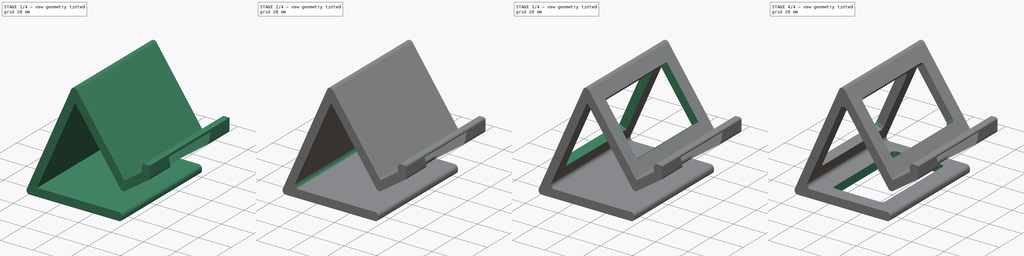
[diagram: build sequence overview — one tinted view per stage of 4, left to right]
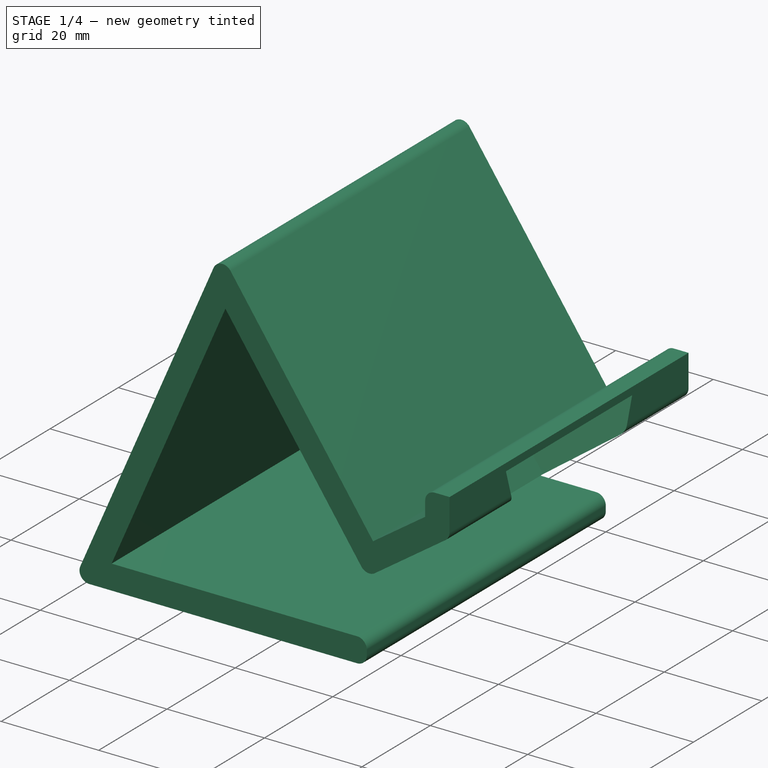
[diagram: stage 1 of 4 — iso view after this stage's code; geometry added in this stage tinted green]
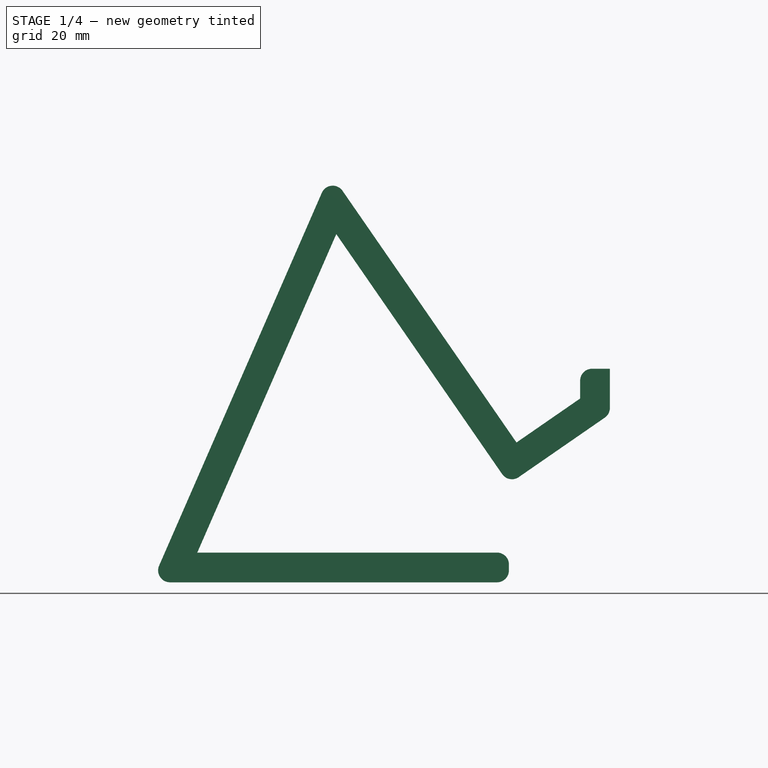
[diagram: stage 1 of 4 — front view after this stage's code; geometry added in this stage tinted green]
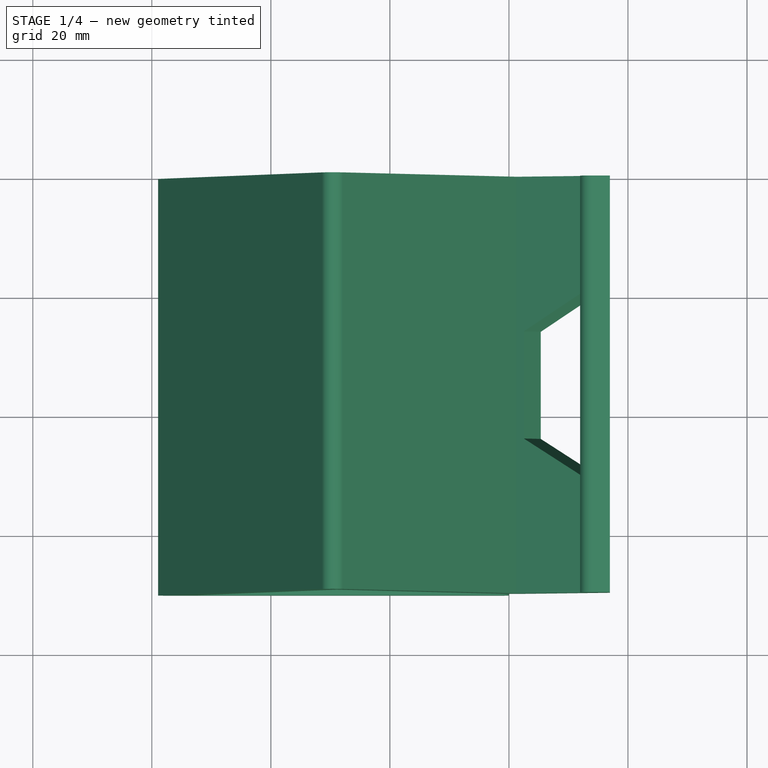
[diagram: stage 1 of 4 — top view after this stage's code; geometry added in this stage tinted green]
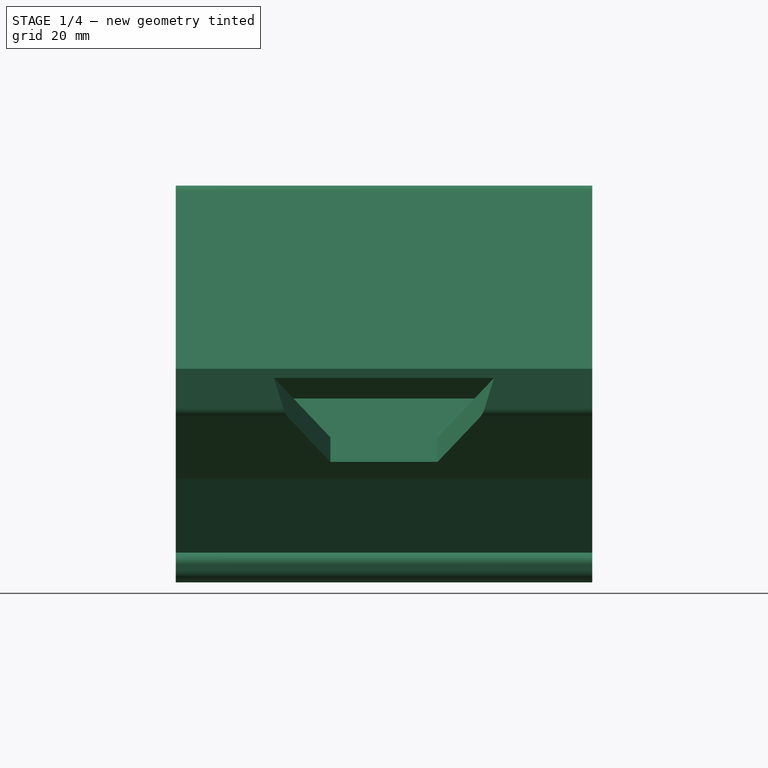
[diagram: stage 1 of 4 — right view after this stage's code; geometry added in this stage tinted green]
FCSTD DOCUMENT  (FreeCAD 0.21R33694 (Git))
Label: PhoneStand
License: All rights reserved
LicenseURL: http://en.wikipedia.org/wiki/All_rights_reserved
objects: PartDesign::Fillet×6, Sketcher::SketchObject×5, PartDesign::Pocket×4, PartDesign::Pad×1, PartDesign::Body×1
note: 28 computed .brp shape members not serialized (recipe doc carries the construction recipe); baked Part::Feature solids carry a one-line shape summary decoded from their .brp

FEATURE [Sketcher::SketchObject] Sketch
  FullyConstrained = true
  MapMode = 5
  Placement = pos=(0,0,0) rot=(1,0,0;1.5708rad)
  Support = -> [XZ_Plane]
  sketch-geometry (15):
    g0: LineSegment StartX=0 StartY=0 StartZ=0 EndX=30 EndY=68.7386 EndZ=0
    g1: LineSegment StartX=30 StartY=68.7386 StartZ=0 EndX=61.2705 EndY=23.4931 EndZ=0
    g2: LineSegment StartX=61.2705 StartY=23.4931 StartZ=0 EndX=71.9649 EndY=30.8843 EndZ=0
    g3: LineSegment StartX=71.9649 StartY=30.8843 StartZ=0 EndX=71.9649 EndY=35.8843 EndZ=0
    g4: LineSegment StartX=71.9649 StartY=35.8843 StartZ=0 EndX=76.9649 EndY=35.8843 EndZ=0
    g5: LineSegment StartX=76.9649 StartY=35.8843 StartZ=0 EndX=76.9649 EndY=28.262 EndZ=0
    g6: LineSegment StartX=76.9649 StartY=28.262 StartZ=0 EndX=60 EndY=16.5371 EndZ=0
    g7: LineSegment StartX=60 StartY=16.5371 StartZ=0 EndX=30.9913 EndY=58.51 EndZ=0
    g8: LineSegment StartX=30.9913 StartY=58.51 StartZ=0 EndX=7.63763 EndY=5 EndZ=0
    g9: LineSegment StartX=60 StartY=5 StartZ=0 EndX=60 EndY=0 EndZ=0
    g10: LineSegment StartX=60 StartY=0 StartZ=0 EndX=0 EndY=0 EndZ=0
    g11: LineSegment StartX=7.63763 StartY=5 StartZ=0 EndX=60 EndY=5 EndZ=0
    g12: LineSegment StartX=19.3145 StartY=31.755 StartZ=0 EndX=14.7319 EndY=33.755 EndZ=0
    g13: LineSegment StartX=45.4957 StartY=37.5236 StartZ=0 EndX=49.6089 EndY=40.3663 EndZ=0
    g14: LineSegment StartX=65.6397 StartY=26.5128 StartZ=0 EndX=68.4824 EndY=22.3995 EndZ=0
  constraints (44):
    c: Coincident(g-1,g0)
    c: Coincident(g0,g1)
    c: Coincident(g1,g2)
    c: Coincident(g2,g3)
    c: Coincident(g3,g4)
    c: Coincident(g4,g5)
    c: Vertical(g5)
    c: Coincident(g5,g6)
    c: Coincident(g6,g7)
    c: Coincident(g7,g8)
    c: PointOnObject(g9,g-1)
    c: Coincident(g9,g10)
    c: Coincident(g10,g0)
    c: Parallel(g8,g0)
    c: Parallel(g7,g1)
    c: Parallel(g2,g6)
    c: Parallel(g3,g5)
    c: Coincident(g11,g8)
    c: Coincident(g11,g9)
    c: Horizontal(g11)
    c: DistanceX(g10,g10) = 60
    c: Vertical(g9)
    c: Distance(g0) = 75
    c: DistanceX(g0,g0) = 30
    c: DistanceY(g9,g9) = 5
    c: Distance(g1) = 55
    c: DistanceX(g0,g6) = 60
    c: Angle(g2,g1) = 1.5708
    c: Distance(g2) = 13
    c: Horizontal(g4)
    c: DistanceY(g3,g3) = 5
    c: DistanceX(g4,g4) = 5
    c: PointOnObject(g12,g0)
    c: Perpendicular(g12,g8)
    c: Distance(g12) = 5
    c: PointOnObject(g13,g1)
    c: Perpendicular(g13,g7)
    c: Distance(g13) = 5
    c: PointOnObject(g14,g2)
    c: Perpendicular(g14,g2)
    c: Distance(g14) = 5
    c: Symmetric(g8,g7,g12)
    c: Symmetric(g7,g6,g13)
    c: Symmetric(g6,g5,g14)
FEATURE [PartDesign::Pad] Pad
  Direction = (0,-1,2e-16)
  Length = 70
  Length2 = 10
  Placement = pos=(0,0,0) rot=(1,0,0;1.5708rad)
  Profile = -> Sketch
  ReferenceAxis = -> Sketch [N_Axis]
  Type = 0
FEATURE [Sketcher::SketchObject] Sketch001
  ExternalGeometry = -> [Pad]
  FullyConstrained = true
  MapMode = 5
  Placement = pos=(8.81773,-2.8e-15,-12.7585) rot=(-0.297787,0,0.954632;3.14159rad)
  Support = -> [Pad]
  sketch-geometry (6):
    g0: LineSegment StartX=-90.261 StartY=57.5 StartZ=0 EndX=-65.261 EndY=44 EndZ=0
    g1: LineSegment StartX=-65.261 StartY=44 StartZ=0 EndX=-65.261 EndY=26 EndZ=0
    g2: LineSegment StartX=-65.261 StartY=26 StartZ=0 EndX=-90.261 EndY=12.5 EndZ=0
    g3: LineSegment StartX=-90.261 StartY=12.5 StartZ=0 EndX=-90.261 EndY=57.5 EndZ=0
    g4: GeomPoint X=-65.261 Y=35 Z=0
    g5: LineSegment StartX=-65.261 StartY=70 StartZ=0 EndX=-65.261 EndY=0 EndZ=0
  constraints (16):
    c: Coincident(g0,g1)
    c: Vertical(g1)
    c: Coincident(g1,g2)
    c: Coincident(g2,g3)
    c: Coincident(g3,g0)
    c: Vertical(g3)
    c: DistanceX(g0,g-3) = 1.5
    c: Equal(g0,g2)
    c: Distance(g1) = 18
    c: Symmetric(g0,g1,g4)
    c: Vertical(g5)
    c: Horizontal(g5,g-3)
    c: Horizontal(g-3,g5)
    c: Symmetric(g5,g5,g4)
    c: DistanceY(g3,g3) = 45
    c: DistanceX(g0,g0) = 25
FEATURE [PartDesign::Pocket] Pocket
  BaseFeature = -> Pad
  Direction = (0.568554,-2e-16,-0.822646)
  Length = 5
  Length2 = 5
  Placement = pos=(0,0,0) rot=(1,0,0;1.5708rad)
  Profile = -> Sketch001
  ReferenceAxis = -> Sketch001 [N_Axis]
  Type = 1
FEATURE [PartDesign::Fillet] Fillet
  Base = -> Pocket [Edge29,Edge5,Edge2,Edge1,Edge43,Edge36,Edge42,Edge38]
  BaseFeature = -> Pocket
  Placement = pos=(0,0,0) rot=(1,0,0;1.5708rad)
  Radius = 2
  SupportTransform = false
  UseAllEdges = false
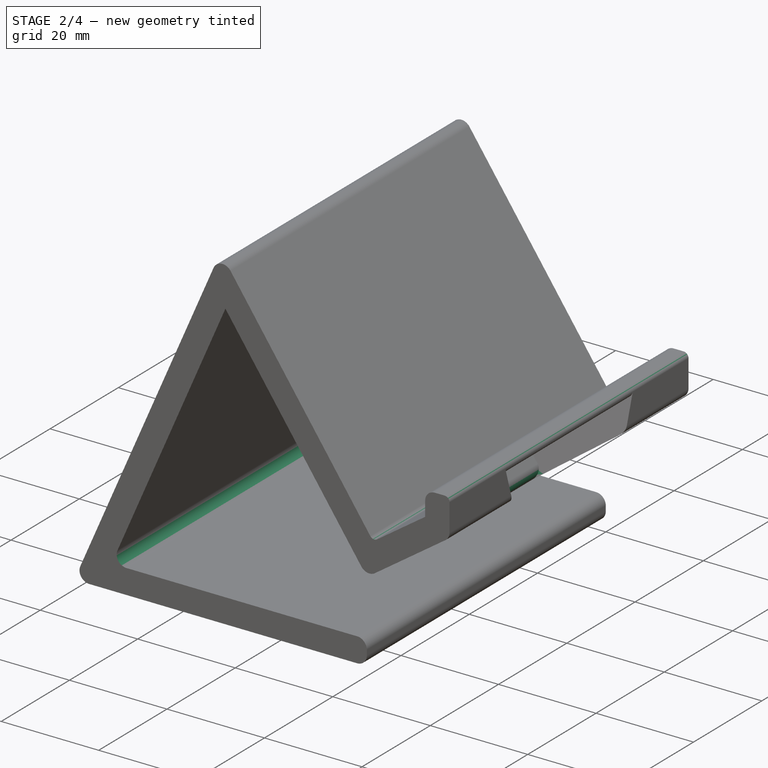
[diagram: stage 2 of 4 — iso view after this stage's code; geometry added in this stage tinted green]
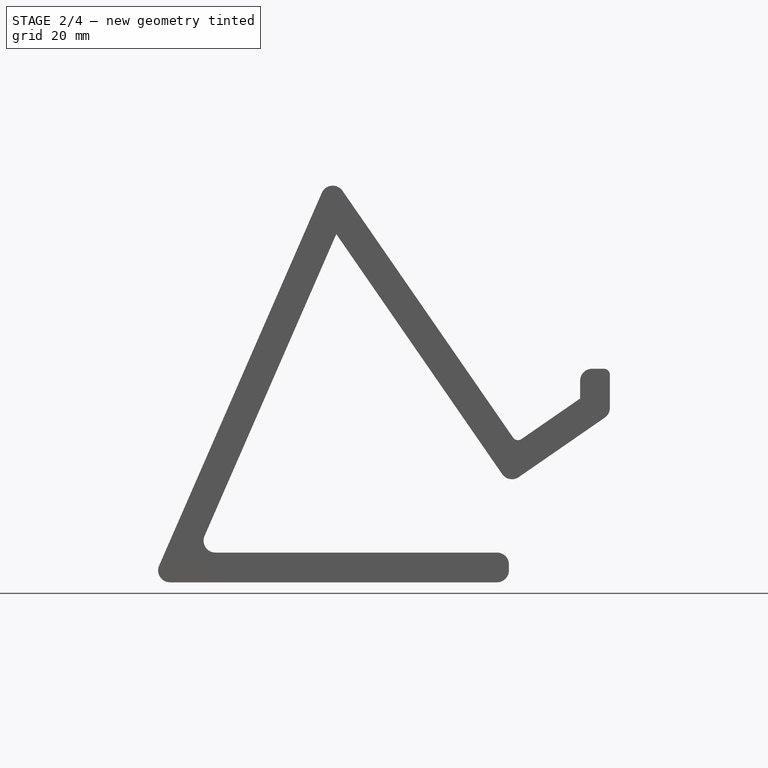
[diagram: stage 2 of 4 — front view after this stage's code; geometry added in this stage tinted green]
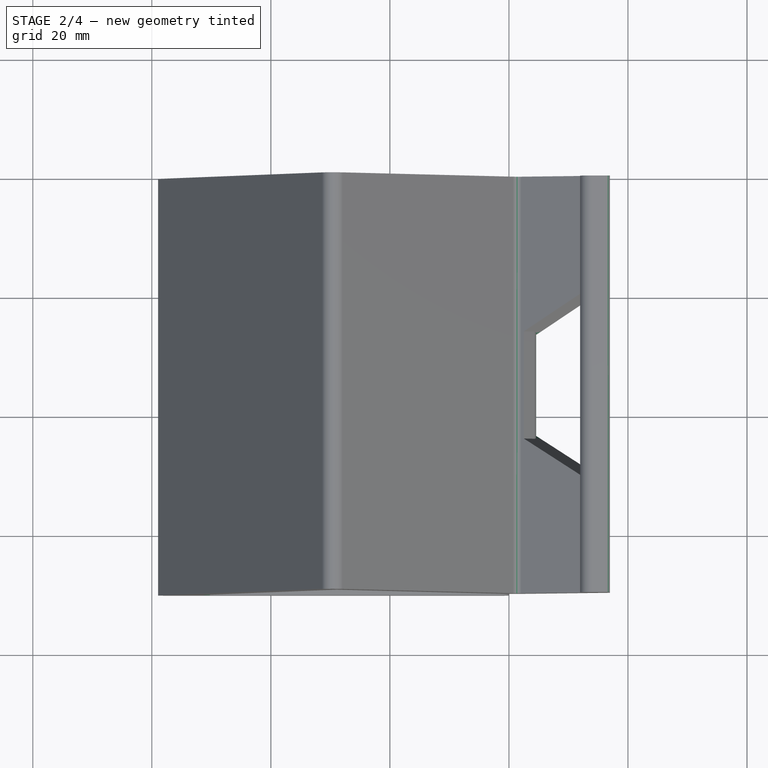
[diagram: stage 2 of 4 — top view after this stage's code; geometry added in this stage tinted green]
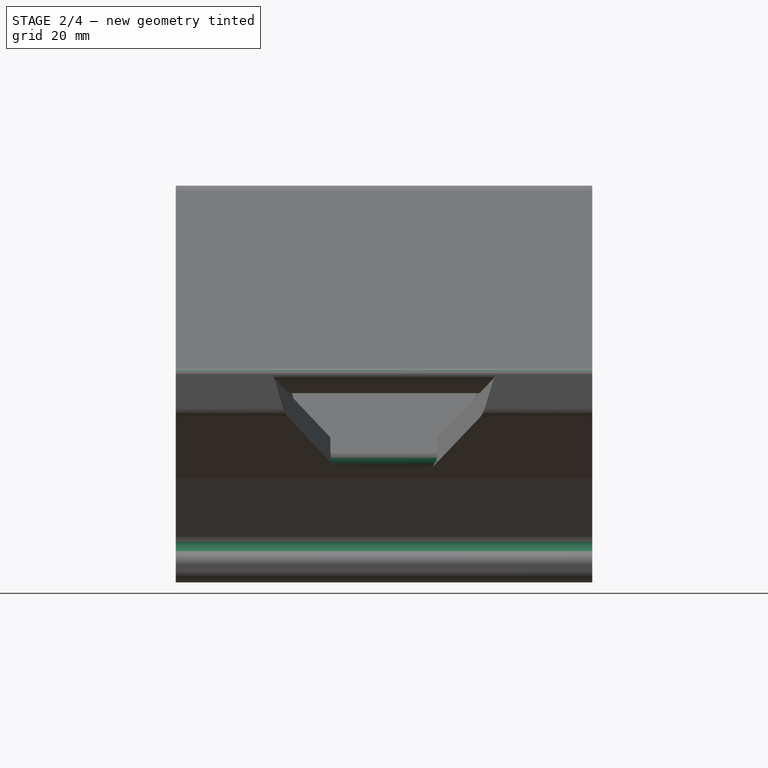
[diagram: stage 2 of 4 — right view after this stage's code; geometry added in this stage tinted green]
FEATURE [PartDesign::Fillet] Fillet001
  Base = -> Fillet [Edge44,Edge57,Edge61,Edge53]
  BaseFeature = -> Fillet
  Placement = pos=(0,0,0) rot=(1,0,0;1.5708rad)
  Radius = 1
  SupportTransform = false
  UseAllEdges = false
FEATURE [PartDesign::Fillet] Fillet002
  Base = -> Fillet001 [Edge68]
  BaseFeature = -> Fillet001
  Placement = pos=(0,0,0) rot=(1,0,0;1.5708rad)
  Radius = 2
  SupportTransform = false
  UseAllEdges = false
FEATURE [PartDesign::Fillet] Fillet003
  Base = -> Fillet002 [Edge45]
  BaseFeature = -> Fillet002
  Placement = pos=(0,0,0) rot=(1,0,0;1.5708rad)
  Radius = 2
  SupportTransform = false
  UseAllEdges = false
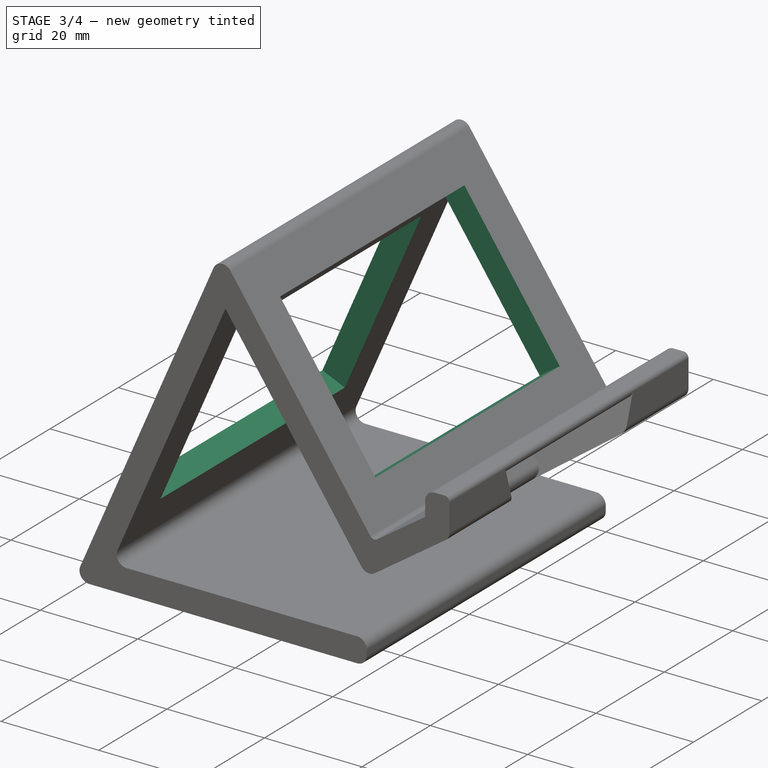
[diagram: stage 3 of 4 — iso view after this stage's code; geometry added in this stage tinted green]
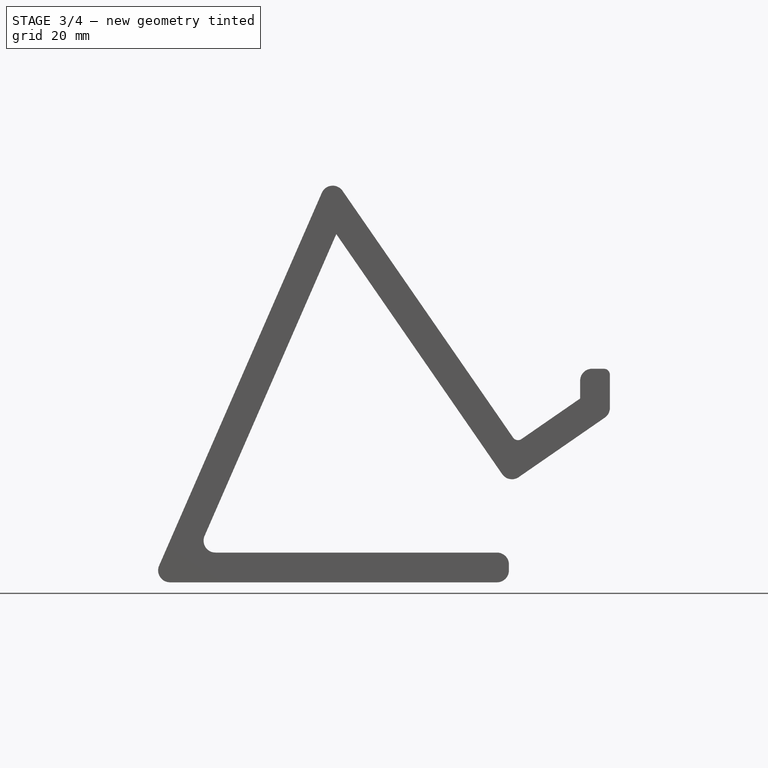
[diagram: stage 3 of 4 — front view after this stage's code; geometry added in this stage tinted green]
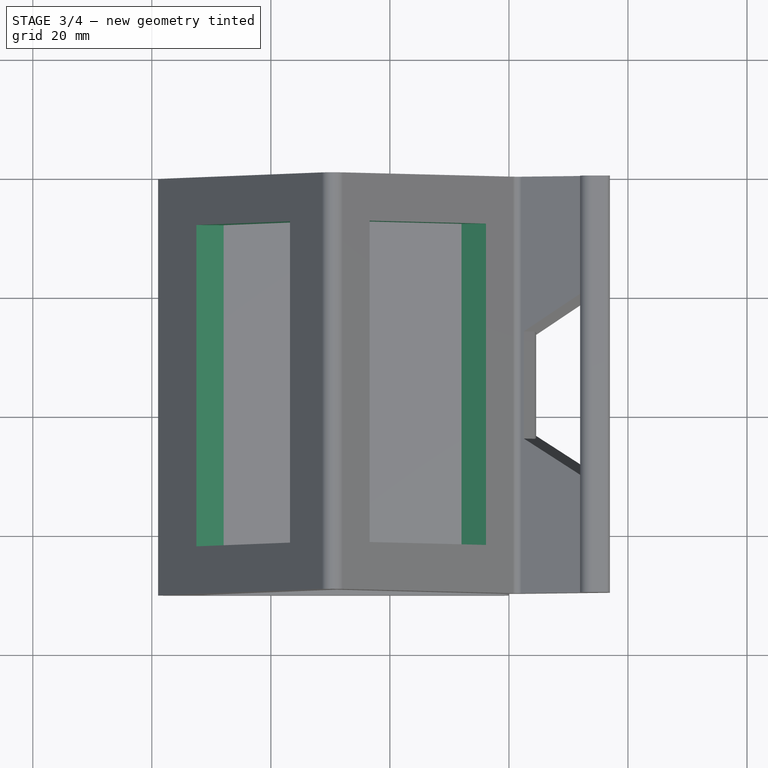
[diagram: stage 3 of 4 — top view after this stage's code; geometry added in this stage tinted green]
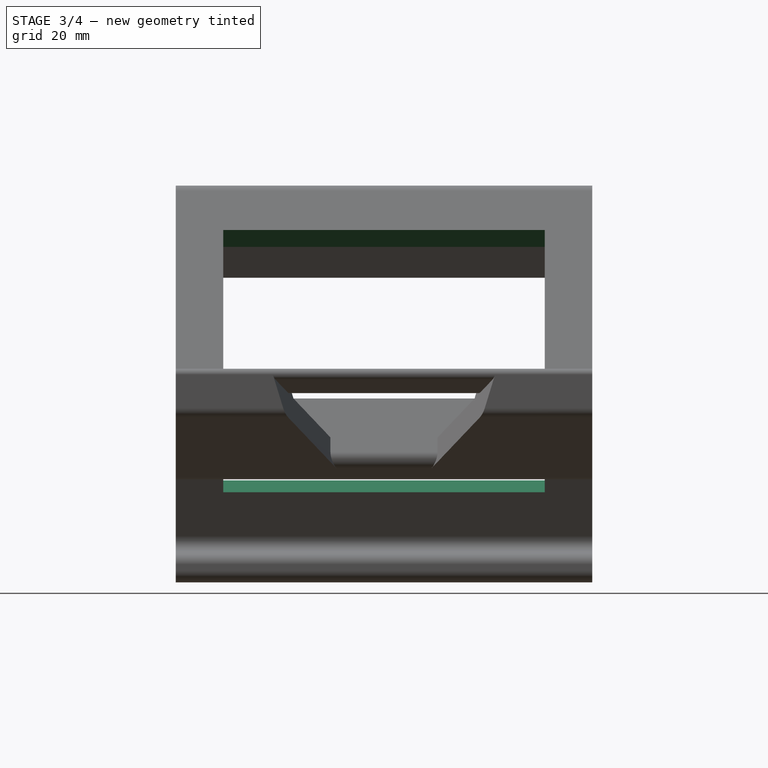
[diagram: stage 3 of 4 — right view after this stage's code; geometry added in this stage tinted green]
FEATURE [Sketcher::SketchObject] Sketch002
  ExternalGeometry = -> [Fillet003]
  FullyConstrained = true
  MapMode = 5
  Placement = pos=(52.4527,8e-15,36.2516) rot=(0.46446,0,0.885594;3.14159rad)
  Support = -> [Fillet003]
  sketch-geometry (6):
    g0: GeomPoint X=10.6953 Y=35 Z=0
    g1: LineSegment StartX=-6.50905 StartY=62 StartZ=0 EndX=-6.50905 EndY=8 EndZ=0
    g2: LineSegment StartX=-6.50905 StartY=8 StartZ=0 EndX=27.8997 EndY=8 EndZ=0
    g3: LineSegment StartX=27.8997 StartY=8 StartZ=0 EndX=27.8997 EndY=62 EndZ=0
    g4: LineSegment StartX=27.8997 StartY=62 StartZ=0 EndX=-6.50905 EndY=62 EndZ=0
    g5: GeomPoint X=10.6953 Y=35 Z=0
  constraints (13):
    c: Symmetric(g-3,g-4,g0)
    c: Coincident(g1,g2)
    c: Coincident(g2,g3)
    c: Coincident(g3,g4)
    c: Coincident(g4,g1)
    c: Horizontal(g2)
    c: Horizontal(g4)
    c: Vertical(g1)
    c: Vertical(g3)
    c: Symmetric(g2,g1,g5)
    c: Coincident(g5,g0)
    c: DistanceY(g1,g-4) = 8
    c: DistanceX(g-3,g1) = 8
FEATURE [PartDesign::Pocket] Pocket001
  BaseFeature = -> Fillet003
  Direction = (-0.822646,-1e-16,-0.568554)
  Length = 5
  Length2 = 5
  Placement = pos=(0,0,0) rot=(1,0,0;1.5708rad)
  Profile = -> Sketch002
  ReferenceAxis = -> Sketch002 [N_Axis]
  Type = 2
FEATURE [Sketcher::SketchObject] Sketch003
  ExternalGeometry = -> [Pocket001]
  FullyConstrained = true
  MapMode = 5
  Placement = pos=(4.58258,-4e-16,-2) rot=(0.83666,0,0.547723;3.14159rad)
  Support = -> [Pocket001]
  sketch-geometry (6):
    g0: GeomPoint X=38.3573 Y=35 Z=0
    g1: LineSegment StartX=18.6927 StartY=62 StartZ=0 EndX=18.6927 EndY=8 EndZ=0
    g2: LineSegment StartX=18.6927 StartY=8 StartZ=0 EndX=58.0219 EndY=8 EndZ=0
    g3: LineSegment StartX=58.0219 StartY=8 StartZ=0 EndX=58.0219 EndY=62 EndZ=0
    g4: LineSegment StartX=58.0219 StartY=62 StartZ=0 EndX=18.6927 EndY=62 EndZ=0
    g5: GeomPoint X=38.3573 Y=35 Z=0
  constraints (13):
    c: Symmetric(g-4,g-3,g0)
    c: Coincident(g1,g2)
    c: Coincident(g2,g3)
    c: Coincident(g3,g4)
    c: Coincident(g4,g1)
    c: Horizontal(g2)
    c: Horizontal(g4)
    c: Vertical(g1)
    c: Vertical(g3)
    c: Symmetric(g2,g1,g5)
    c: Coincident(g5,g0)
    c: DistanceX(g2,g-4) = 8
    c: DistanceY(g-4,g2) = 8
FEATURE [PartDesign::Pocket] Pocket002
  BaseFeature = -> Pocket001
  Direction = (-0.916515,1e-16,0.4)
  Length = 5
  Length2 = 5
  Placement = pos=(0,0,0) rot=(1,0,0;1.5708rad)
  Profile = -> Sketch003
  ReferenceAxis = -> Sketch003 [N_Axis]
  Type = 2
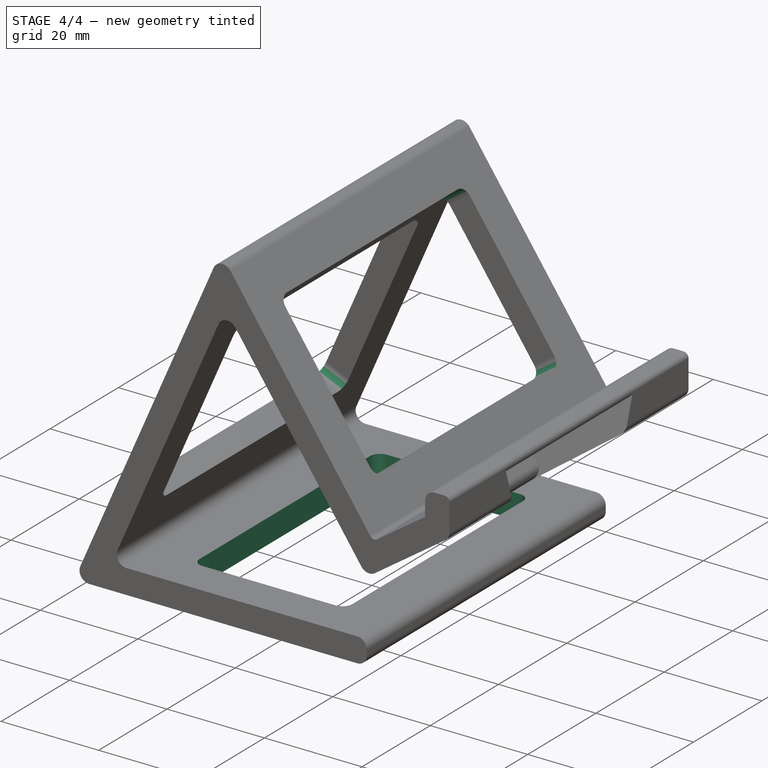
[diagram: stage 4 of 4 — iso view after this stage's code; geometry added in this stage tinted green]
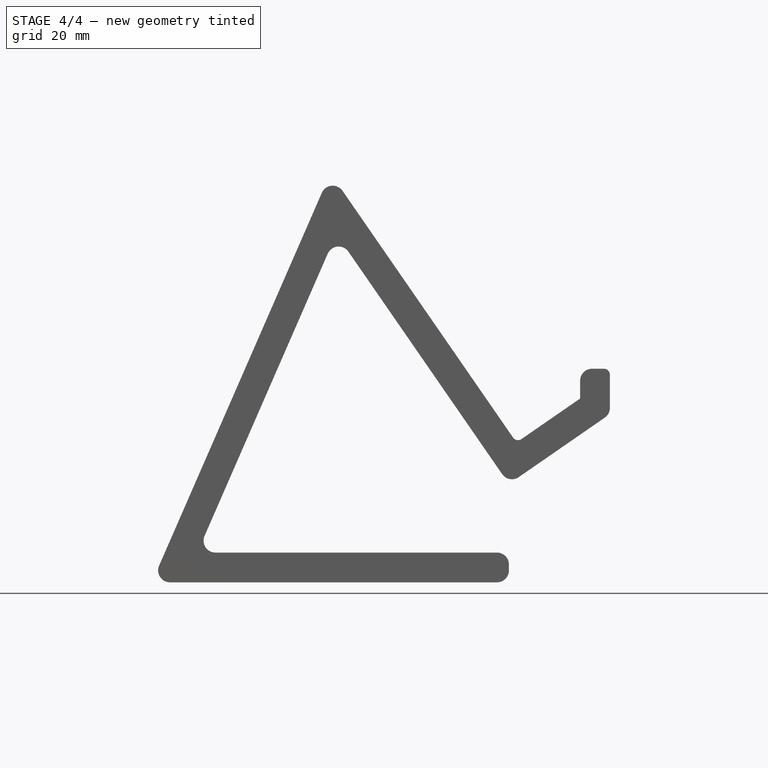
[diagram: stage 4 of 4 — front view after this stage's code; geometry added in this stage tinted green]
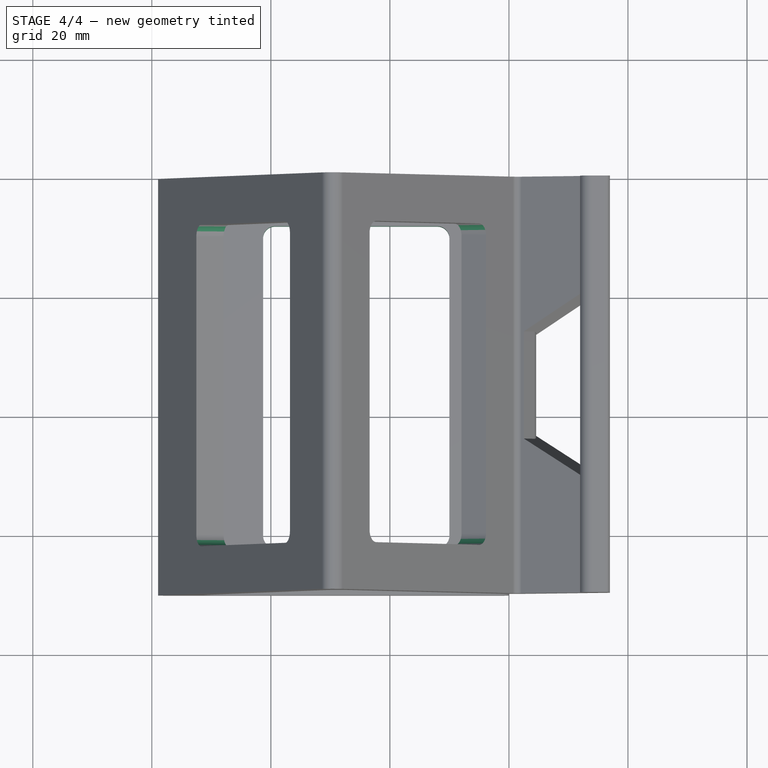
[diagram: stage 4 of 4 — top view after this stage's code; geometry added in this stage tinted green]
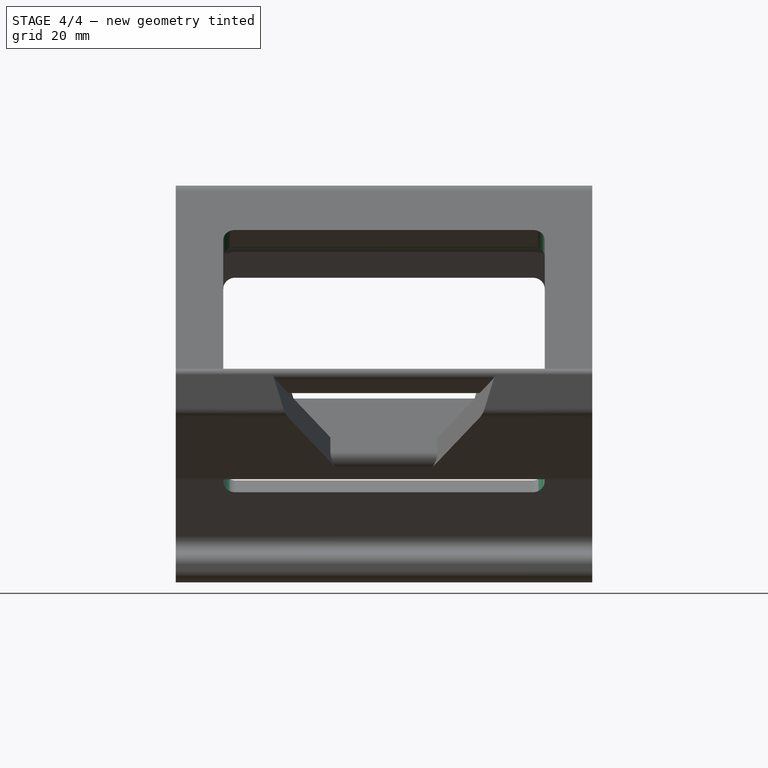
[diagram: stage 4 of 4 — right view after this stage's code; geometry added in this stage tinted green]
FEATURE [Sketcher::SketchObject] Sketch004
  ExternalGeometry = -> [Pocket002]
  FullyConstrained = true
  MapMode = 5
  Placement = pos=(0,1.1e-15,5) rot=(0,0,1;3.14159rad)
  Support = -> [Pocket002]
  sketch-geometry (6):
    g0: GeomPoint X=-34.3463 Y=35 Z=0
    g1: LineSegment StartX=-50 StartY=62 StartZ=0 EndX=-50 EndY=8 EndZ=0
    g2: LineSegment StartX=-50 StartY=8 StartZ=0 EndX=-18.6927 EndY=8 EndZ=0
    g3: LineSegment StartX=-18.6927 StartY=8 StartZ=0 EndX=-18.6927 EndY=62 EndZ=0
    g4: LineSegment StartX=-18.6927 StartY=62 StartZ=0 EndX=-50 EndY=62 EndZ=0
    g5: GeomPoint X=-34.3463 Y=35 Z=0
  constraints (13):
    c: Symmetric(g-4,g-3,g0)
    c: Coincident(g1,g2)
    c: Coincident(g2,g3)
    c: Coincident(g3,g4)
    c: Coincident(g4,g1)
    c: Horizontal(g2)
    c: Horizontal(g4)
    c: Vertical(g1)
    c: Vertical(g3)
    c: Symmetric(g2,g1,g5)
    c: Coincident(g5,g0)
    c: DistanceX(g2,g-4) = 8
    c: DistanceY(g-4,g2) = 8
FEATURE [PartDesign::Pocket] Pocket003
  BaseFeature = -> Pocket002
  Direction = (0,-2e-16,-1)
  Length = 5
  Length2 = 5
  Placement = pos=(0,0,0) rot=(1,0,0;1.5708rad)
  Profile = -> Sketch004
  ReferenceAxis = -> Sketch004 [N_Axis]
  Type = 2
FEATURE [PartDesign::Fillet] Fillet004
  Base = -> Pocket003 [Edge133,Edge136,Edge135,Edge134,Edge128,Edge127,Edge125,Edge126,Edge130,Edge129,Edge131,Edge132]
  BaseFeature = -> Pocket003
  Placement = pos=(0,0,0) rot=(1,0,0;1.5708rad)
  Radius = 2
  SupportTransform = false
  UseAllEdges = false
FEATURE [PartDesign::Fillet] Fillet005
  Base = -> Fillet004 [Edge83]
  BaseFeature = -> Fillet004
  Placement = pos=(0,0,0) rot=(1,0,0;1.5708rad)
  Radius = 2
  SupportTransform = false
  UseAllEdges = false
FEATURE [PartDesign::Body] Body
  Group = -> [Sketch,Pad,Sketch001,Pocket,Fillet,Fillet001,Fillet002,Fillet003,Sketch002,Pocket001,Sketch003,Pocket002,Sketch004,Pocket003,Fillet004,Fillet005]
  Origin = -> Origin
  Tip = -> Fillet005
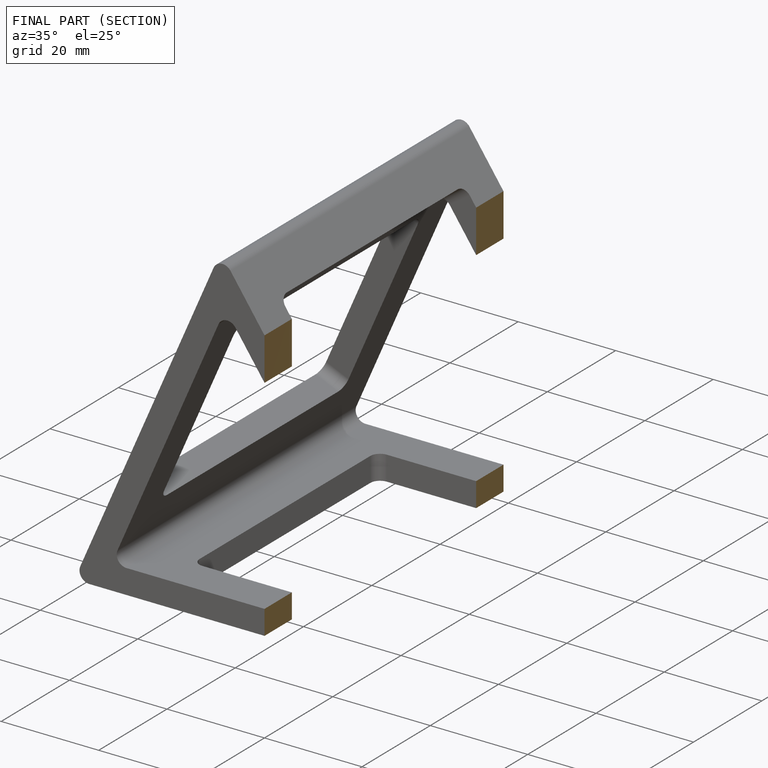
[diagram: finished part — half-section view (interior)]
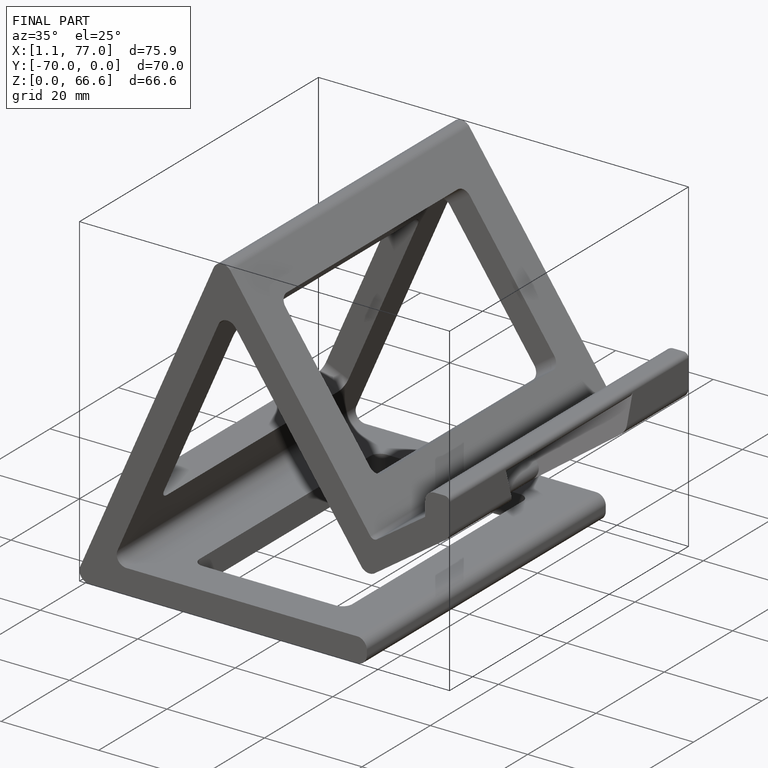
[diagram: finished part — iso view with bounding-box wireframe]
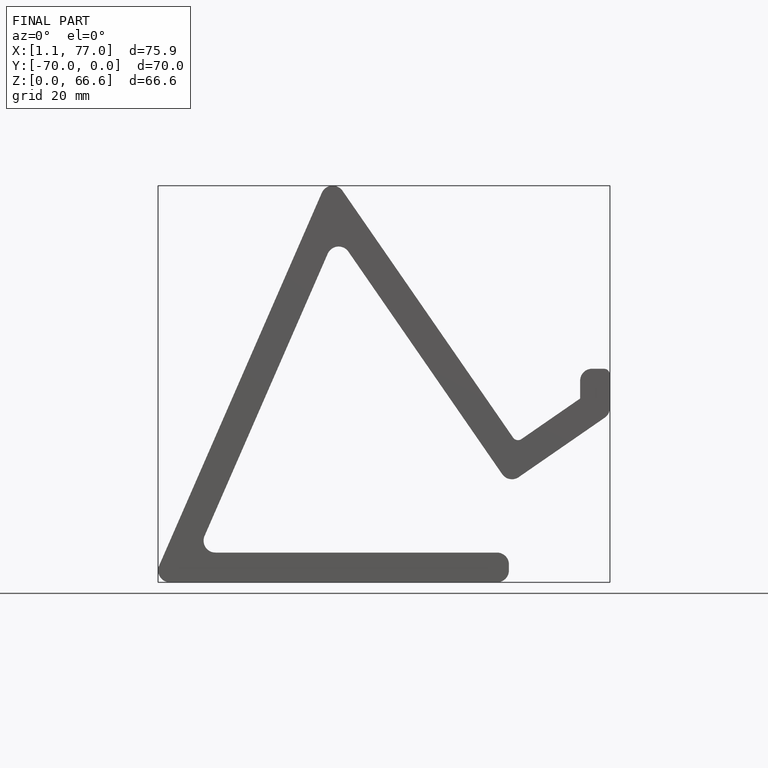
[diagram: finished part — front view with bounding-box wireframe]
